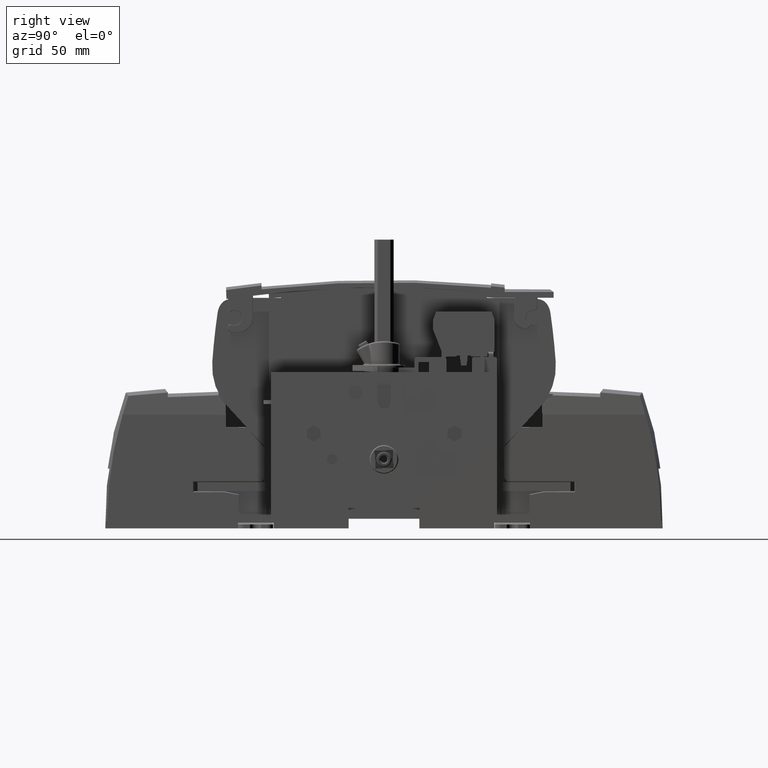
[diagram: clean part render]
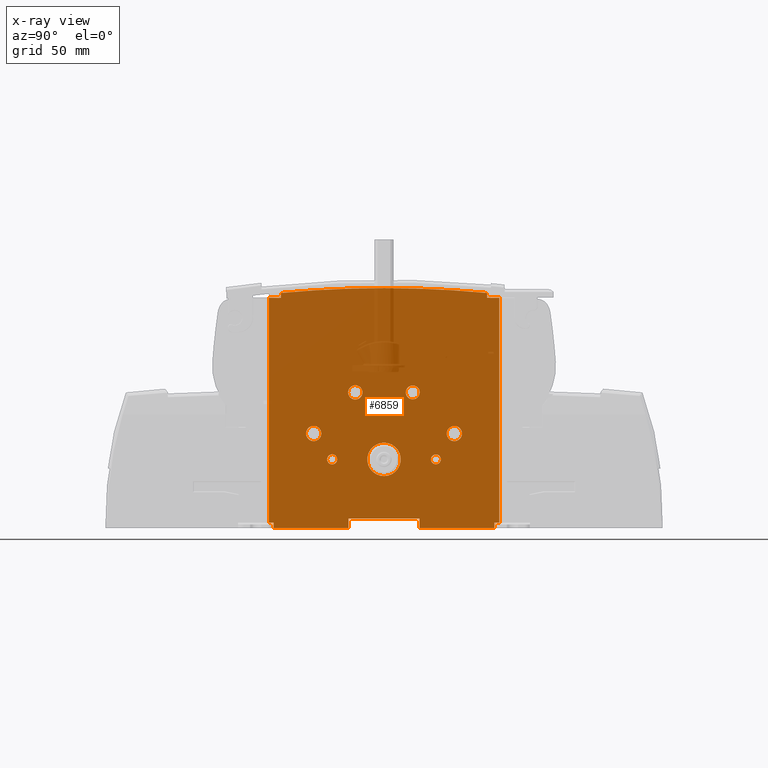
[diagram: x-ray — body ghosted, one internal face saturated and labeled with its STEP entity id]
A machine part, right view, then the same camera in x-ray: the body is ghosted and one INTERNAL B-rep face — a face not visible from any outside direction — is saturated and labeled: STEP entity #6859.
In plain terms, the highlighted planar face has unit normal (1, 0, 0).
Its self-contained STEP definition (entity closure, byte-faithful):
#1653=PLANE('',#48847);
#6859=ADVANCED_FACE('',(#8990,#8991,#8992,#8993,#8994,#8995,#8996,#8997),
#1653,.T.);
#8467=CIRCLE('',#48838,566.856628699517);
#8468=CIRCLE('',#48839,566.856628699517);
#8469=CIRCLE('',#48840,2.65);
#8470=CIRCLE('',#48841,8.75);
#8471=CIRCLE('',#48842,3.65);
#8472=CIRCLE('',#48843,2.6);
#8473=CIRCLE('',#48844,4.);
#8474=CIRCLE('',#48845,3.75);
#8475=CIRCLE('',#48846,4.);
#8990=FACE_BOUND('',#11089,.T.);
#8991=FACE_BOUND('',#11090,.T.);
#8992=FACE_BOUND('',#11091,.T.);
#8993=FACE_BOUND('',#11092,.T.);
#8994=FACE_BOUND('',#11093,.T.);
#8995=FACE_BOUND('',#11094,.T.);
#8996=FACE_BOUND('',#11095,.T.);
#8997=FACE_BOUND('',#11096,.T.);
#11089=EDGE_LOOP('',(#21682,#21683,#21684,#21685,#21686,#21687,#21688,#21689,
#21690,#21691,#21692,#21693,#21694,#21695,#21696,#21697,#21698));
#11090=EDGE_LOOP('',(#21699));
#11091=EDGE_LOOP('',(#21700));
#11092=EDGE_LOOP('',(#21701));
#11093=EDGE_LOOP('',(#21702));
#11094=EDGE_LOOP('',(#21703));
#11095=EDGE_LOOP('',(#21704));
#11096=EDGE_LOOP('',(#21705));
#21682=ORIENTED_EDGE('',*,*,#34609,.T.);
#21683=ORIENTED_EDGE('',*,*,#34363,.T.);
#21684=ORIENTED_EDGE('',*,*,#34572,.T.);
#21685=ORIENTED_EDGE('',*,*,#34376,.T.);
#21686=ORIENTED_EDGE('',*,*,#34393,.T.);
#21687=ORIENTED_EDGE('',*,*,#34409,.F.);
#21688=ORIENTED_EDGE('',*,*,#34390,.F.);
#21689=ORIENTED_EDGE('',*,*,#34369,.F.);
#21690=ORIENTED_EDGE('',*,*,#34367,.F.);
#21691=ORIENTED_EDGE('',*,*,#34354,.F.);
#21692=ORIENTED_EDGE('',*,*,#34583,.F.);
#21693=ORIENTED_EDGE('',*,*,#34534,.F.);
#21694=ORIENTED_EDGE('',*,*,#34610,.F.);
#21695=ORIENTED_EDGE('',*,*,#34611,.F.);
#21696=ORIENTED_EDGE('',*,*,#34612,.T.);
#21697=ORIENTED_EDGE('',*,*,#34613,.T.);
#21698=ORIENTED_EDGE('',*,*,#34494,.T.);
#21699=ORIENTED_EDGE('',*,*,#34614,.T.);
#21700=ORIENTED_EDGE('',*,*,#34615,.F.);
#21701=ORIENTED_EDGE('',*,*,#34616,.F.);
#21702=ORIENTED_EDGE('',*,*,#34617,.F.);
#21703=ORIENTED_EDGE('',*,*,#34618,.F.);
#21704=ORIENTED_EDGE('',*,*,#34619,.T.);
#21705=ORIENTED_EDGE('',*,*,#34620,.F.);
#28404=VERTEX_POINT('',#74981);
#28405=VERTEX_POINT('',#74983);
#28411=VERTEX_POINT('',#74998);
#28412=VERTEX_POINT('',#75000);
#28415=VERTEX_POINT('',#75008);
#28416=VERTEX_POINT('',#75012);
#28419=VERTEX_POINT('',#75022);
#28420=VERTEX_POINT('',#75024);
#28431=VERTEX_POINT('',#75054);
#28432=VERTEX_POINT('',#75058);
#28505=VERTEX_POINT('',#75254);
#28506=VERTEX_POINT('',#75256);
#28529=VERTEX_POINT('',#75334);
#28530=VERTEX_POINT('',#75336);
#28569=VERTEX_POINT('',#75533);
#28570=VERTEX_POINT('',#75535);
#28571=VERTEX_POINT('',#75537);
#28572=VERTEX_POINT('',#75540);
#28573=VERTEX_POINT('',#75542);
#28574=VERTEX_POINT('',#75544);
#28575=VERTEX_POINT('',#75546);
#28576=VERTEX_POINT('',#75548);
#28577=VERTEX_POINT('',#75550);
#28578=VERTEX_POINT('',#75552);
#34354=EDGE_CURVE('',#28404,#28405,#39868,.T.);
#34363=EDGE_CURVE('',#28412,#28411,#39877,.T.);
#34367=EDGE_CURVE('',#28405,#28415,#39881,.T.);
#34369=EDGE_CURVE('',#28415,#28416,#39883,.T.);
#34376=EDGE_CURVE('',#28419,#28420,#39890,.T.);
#34390=EDGE_CURVE('',#28416,#28431,#39904,.T.);
#34393=EDGE_CURVE('',#28420,#28432,#39907,.T.);
#34409=EDGE_CURVE('',#28431,#28432,#39922,.T.);
#34494=EDGE_CURVE('',#28506,#28505,#39995,.T.);
#34534=EDGE_CURVE('',#28529,#28530,#40030,.T.);
#34572=EDGE_CURVE('',#28411,#28419,#40060,.T.);
#34583=EDGE_CURVE('',#28530,#28404,#40069,.T.);
#34609=EDGE_CURVE('',#28505,#28412,#40091,.T.);
#34610=EDGE_CURVE('',#28569,#28529,#40092,.T.);
#34611=EDGE_CURVE('',#28570,#28569,#8467,.T.);
#34612=EDGE_CURVE('',#28570,#28571,#8468,.T.);
#34613=EDGE_CURVE('',#28571,#28506,#40093,.T.);
#34614=EDGE_CURVE('',#28572,#28572,#8469,.T.);
#34615=EDGE_CURVE('',#28573,#28573,#8470,.T.);
#34616=EDGE_CURVE('',#28574,#28574,#8471,.T.);
#34617=EDGE_CURVE('',#28575,#28575,#8472,.T.);
#34618=EDGE_CURVE('',#28576,#28576,#8473,.T.);
#34619=EDGE_CURVE('',#28577,#28577,#8474,.T.);
#34620=EDGE_CURVE('',#28578,#28578,#8475,.T.);
#39868=LINE('',#74982,#44941);
#39877=LINE('',#74999,#44950);
#39881=LINE('',#75007,#44954);
#39883=LINE('',#75011,#44956);
#39890=LINE('',#75025,#44963);
#39904=LINE('',#75053,#44977);
#39907=LINE('',#75059,#44980);
#39922=LINE('',#75092,#44995);
#39995=LINE('',#75255,#45068);
#40030=LINE('',#75335,#45103);
#40060=LINE('',#75454,#45133);
#40069=LINE('',#75478,#45142);
#40091=LINE('',#75531,#45164);
#40092=LINE('',#75532,#45165);
#40093=LINE('',#75538,#45166);
#44941=VECTOR('',#57783,1.);
#44950=VECTOR('',#57794,1.);
#44954=VECTOR('',#57800,1.);
#44956=VECTOR('',#57804,1.);
#44963=VECTOR('',#57815,1.);
#44977=VECTOR('',#57837,1.);
#44980=VECTOR('',#57842,1.);
#44995=VECTOR('',#57871,1.);
#45068=VECTOR('',#58000,1.);
#45103=VECTOR('',#58069,1.);
#45133=VECTOR('',#58191,1.);
#45142=VECTOR('',#58220,1.);
#45164=VECTOR('',#58264,1.);
#45165=VECTOR('',#58265,1.);
#45166=VECTOR('',#58270,1.);
#48838=AXIS2_PLACEMENT_3D('',#75534,#58266,#58267);
#48839=AXIS2_PLACEMENT_3D('',#75536,#58268,#58269);
#48840=AXIS2_PLACEMENT_3D('',#75539,#58271,#58272);
#48841=AXIS2_PLACEMENT_3D('',#75541,#58273,#58274);
#48842=AXIS2_PLACEMENT_3D('',#75543,#58275,#58276);
#48843=AXIS2_PLACEMENT_3D('',#75545,#58277,#58278);
#48844=AXIS2_PLACEMENT_3D('',#75547,#58279,#58280);
#48845=AXIS2_PLACEMENT_3D('',#75549,#58281,#58282);
#48846=AXIS2_PLACEMENT_3D('',#75551,#58283,#58284);
#48847=AXIS2_PLACEMENT_3D('',#75553,#58285,#58286);
#57783=DIRECTION('',(0.,-1.,0.));
#57794=DIRECTION('',(0.,1.,0.));
#57800=DIRECTION('',(0.,0.,-1.));
#57804=DIRECTION('',(0.,-1.,2.22044604925025E-016));
#57815=DIRECTION('',(0.,1.,2.22044604925025E-016));
#57837=DIRECTION('',(0.,0.,1.));
#57842=DIRECTION('',(0.,0.,1.));
#57871=DIRECTION('',(0.,-1.,-3.75013847419274E-016));
#58000=DIRECTION('',(0.,-1.,0.));
#58069=DIRECTION('',(0.,1.,0.));
#58191=DIRECTION('',(0.,0.,-1.));
#58220=DIRECTION('',(0.,0.,-1.));
#58264=DIRECTION('',(0.,0.,-1.));
#58265=DIRECTION('',(0.,-2.09215462833515E-013,-1.));
#58266=DIRECTION('',(-1.,0.,0.));
#58267=DIRECTION('',(0.,-1.,-9.79280269838452E-017));
#58268=DIRECTION('',(1.,0.,0.));
#58269=DIRECTION('',(0.,1.,-9.79280269838452E-017));
#58270=DIRECTION('',(0.,2.09215462833515E-013,-1.));
#58271=DIRECTION('',(-1.,0.,0.));
#58272=DIRECTION('',(0.,-1.,-6.12323399573677E-017));
#58273=DIRECTION('',(1.,0.,0.));
#58274=DIRECTION('',(0.,0.,-1.));
#58275=DIRECTION('',(1.,0.,0.));
#58276=DIRECTION('',(0.,1.,0.));
#58277=DIRECTION('',(1.,0.,0.));
#58278=DIRECTION('',(0.,1.,-1.83697019872103E-016));
#58279=DIRECTION('',(1.,0.,0.));
#58280=DIRECTION('',(0.,0.999999999999999,0.));
#58281=DIRECTION('',(-1.,0.,0.));
#58282=DIRECTION('',(0.,-1.,0.));
#58283=DIRECTION('',(1.,0.,0.));
#58284=DIRECTION('',(0.,1.,0.));
#58285=DIRECTION('',(1.,0.,0.));
#58286=DIRECTION('',(0.,0.,-1.));
#74981=CARTESIAN_POINT('',(-25.,60.2,-33.));
#74982=CARTESIAN_POINT('',(-25.,18.5030338257067,-33.));
#74983=CARTESIAN_POINT('',(-25.,57.7,-33.));
#74998=CARTESIAN_POINT('',(-25.,-57.7,-33.));
#74999=CARTESIAN_POINT('',(-25.,-69.5,-33.));
#75000=CARTESIAN_POINT('',(-25.,-60.2,-33.));
#75007=CARTESIAN_POINT('',(-25.,57.7,-31.));
#75008=CARTESIAN_POINT('',(-25.,57.7,-36.));
#75011=CARTESIAN_POINT('',(-25.,62.5,-36.));
#75012=CARTESIAN_POINT('',(-25.,18.5030338257067,-36.));
#75022=CARTESIAN_POINT('',(-25.,-57.7,-36.));
#75024=CARTESIAN_POINT('',(-25.,-18.5030338257067,-36.));
#75025=CARTESIAN_POINT('',(-25.,-62.5,-36.));
#75053=CARTESIAN_POINT('',(-25.,18.5030338257067,60.8279400900079));
#75054=CARTESIAN_POINT('',(-25.,18.5030338257067,-31.));
#75058=CARTESIAN_POINT('',(-25.,-18.5030338257067,-31.));
#75059=CARTESIAN_POINT('',(-25.,-18.5030338257067,60.8279400900079));
#75092=CARTESIAN_POINT('',(-25.,18.5030338257067,-31.));
#75254=CARTESIAN_POINT('',(-25.,-60.2,84.4123947148));
#75255=CARTESIAN_POINT('',(-25.,-53.7999999999991,84.4123947148));
#75256=CARTESIAN_POINT('',(-25.,-53.7999999999991,84.4123947148));
#75334=CARTESIAN_POINT('',(-25.,53.7999999999991,84.4123947148));
#75335=CARTESIAN_POINT('',(-25.,53.7999999999991,84.4123947148));
#75336=CARTESIAN_POINT('',(-25.,60.2,84.4123947148));
#75454=CARTESIAN_POINT('',(-25.,-57.7,-33.));
#75478=CARTESIAN_POINT('',(-25.,60.2,60.8279400900079));
#75531=CARTESIAN_POINT('',(-25.,-60.2,60.8279400900079));
#75532=CARTESIAN_POINT('',(-25.,53.8,86.9330302813814));
#75533=CARTESIAN_POINT('',(-25.,53.7999999999993,86.9330302813814));
#75534=CARTESIAN_POINT('',(-25.,-0.085299580432241,-477.356622281652));
#75535=CARTESIAN_POINT('',(-25.,-3.71230823859037E-013,89.5));
#75536=CARTESIAN_POINT('',(-25.,0.085299580432241,-477.356622281652));
#75537=CARTESIAN_POINT('',(-25.,-53.7999999999993,86.9330302813814));
#75538=CARTESIAN_POINT('',(-25.,-53.8,86.9330302813814));
#75539=CARTESIAN_POINT('',(-25.,-27.1,0.));
#75540=CARTESIAN_POINT('',(-25.,-29.75,-1.62265700887024E-016));
#75541=CARTESIAN_POINT('',(-25.,0.,0.));
#75542=CARTESIAN_POINT('',(-25.,0.,-8.75));
#75543=CARTESIAN_POINT('',(-25.,15.0000000000003,35.));
#75544=CARTESIAN_POINT('',(-25.,18.6500000000003,35.));
#75545=CARTESIAN_POINT('',(-25.,27.1,0.));
#75546=CARTESIAN_POINT('',(-25.,29.7,-4.77612251667468E-016));
#75547=CARTESIAN_POINT('',(-25.,-36.75,13.5));
#75548=CARTESIAN_POINT('',(-25.,-32.75,13.5));
#75549=CARTESIAN_POINT('',(-25.,-15.0000000000003,35.));
#75550=CARTESIAN_POINT('',(-25.,-18.7500000000003,35.));
#75551=CARTESIAN_POINT('',(-25.,36.7499999999981,13.5));
#75552=CARTESIAN_POINT('',(-25.,40.7499999999981,13.5));
#75553=CARTESIAN_POINT('',(-25.,18.5030338257067,-31.));